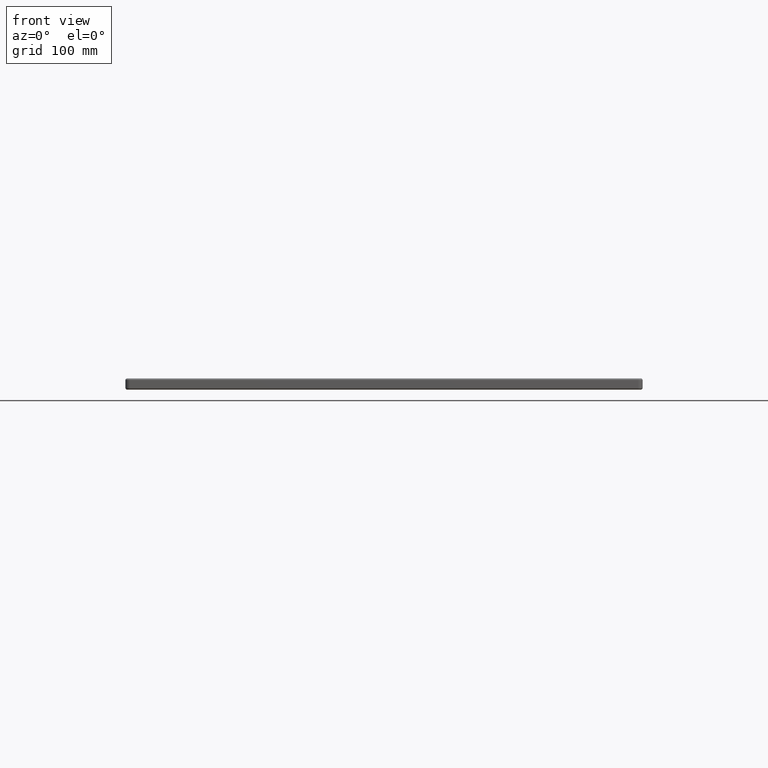
[diagram: clean part render]
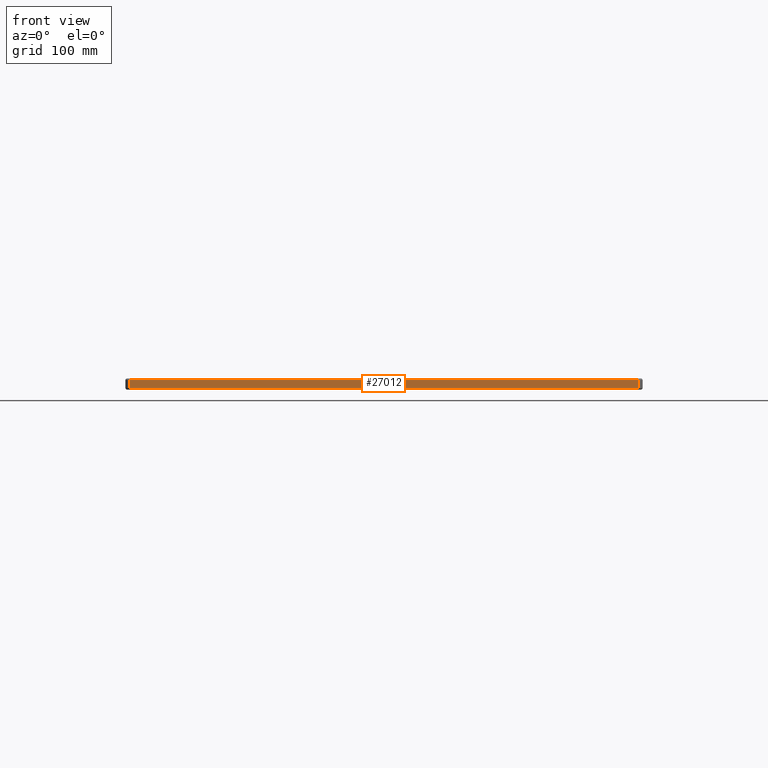
[diagram: same view with one face highlighted and labeled with its STEP entity id]
A machine part, front view. The second image highlights one B-rep face of the part: STEP entity #27012.
In plain terms, the highlighted planar face has unit normal (-0, -1, 0).
Its self-contained STEP definition (entity closure, byte-faithful):
#1149 = VERTEX_POINT ( 'NONE', #38526 ) ;
#2215 = FACE_OUTER_BOUND ( 'NONE', #19122, .T. ) ;
#3274 = VECTOR ( 'NONE', #25928, 1000.000000000000000 ) ;
#3946 = LINE ( 'NONE', #27973, #6429 ) ;
#5249 = ORIENTED_EDGE ( 'NONE', *, *, #23906, .F. ) ;
#5381 = VERTEX_POINT ( 'NONE', #36903 ) ;
#6019 = DIRECTION ( 'NONE',  ( 1.000000000000000000, -9.408669700213185700E-017, 0.0000000000000000000 ) ) ;
#6429 = VECTOR ( 'NONE', #34262, 1000.000000000000000 ) ;
#6843 = LINE ( 'NONE', #22860, #39334 ) ;
#7937 = ORIENTED_EDGE ( 'NONE', *, *, #21853, .T. ) ;
#8358 = VECTOR ( 'NONE', #8831, 1000.000000000000000 ) ;
#8831 = DIRECTION ( 'NONE',  ( 1.000000000000000000, -9.408669700213185700E-017, 0.0000000000000000000 ) ) ;
#9189 = EDGE_CURVE ( 'NONE', #1149, #31726, #34417, .T. ) ;
#13109 = CARTESIAN_POINT ( 'NONE',  ( -295.0000000000001700, -300.0000000000000000, -13.00000000000000000 ) ) ;
#15167 = AXIS2_PLACEMENT_3D ( 'NONE', #18428, #21957, #6019 ) ;
#15862 = ORIENTED_EDGE ( 'NONE', *, *, #39635, .T. ) ;
#16541 = DIRECTION ( 'NONE',  ( 0.0000000000000000000, 0.0000000000000000000, 1.000000000000000000 ) ) ;
#18089 = VERTEX_POINT ( 'NONE', #33758 ) ;
#18428 = CARTESIAN_POINT ( 'NONE',  ( -295.0000000000001700, -300.0000000000000600, -13.00000000000000000 ) ) ;
#19122 = EDGE_LOOP ( 'NONE', ( #5249, #25261, #15862, #7937 ) ) ;
#21853 = EDGE_CURVE ( 'NONE', #5381, #18089, #3946, .T. ) ;
#21957 = DIRECTION ( 'NONE',  ( -9.408669700213185700E-017, -1.000000000000000000, 0.0000000000000000000 ) ) ;
#22860 = CARTESIAN_POINT ( 'NONE',  ( 295.0000000000001700, -300.0000000000001100, -13.00000000000000000 ) ) ;
#23906 = EDGE_CURVE ( 'NONE', #1149, #18089, #30345, .T. ) ;
#25261 = ORIENTED_EDGE ( 'NONE', *, *, #9189, .T. ) ;
#25928 = DIRECTION ( 'NONE',  ( 0.0000000000000000000, 0.0000000000000000000, 1.000000000000000000 ) ) ;
#27012 = ADVANCED_FACE ( 'NONE', ( #2215 ), #34173, .T. ) ;
#27973 = CARTESIAN_POINT ( 'NONE',  ( -295.0000000000001700, -300.0000000000000600, -2.000000000000000000 ) ) ;
#30345 = LINE ( 'NONE', #13109, #3274 ) ;
#31726 = VERTEX_POINT ( 'NONE', #38342 ) ;
#33758 = CARTESIAN_POINT ( 'NONE',  ( -295.0000000000001700, -300.0000000000000000, -2.000000000000001800 ) ) ;
#34173 = PLANE ( 'NONE',  #15167 ) ;
#34262 = DIRECTION ( 'NONE',  ( -1.000000000000000000, 9.408669700213185700E-017, -0.0000000000000000000 ) ) ;
#34417 = LINE ( 'NONE', #40478, #8358 ) ;
#36903 = CARTESIAN_POINT ( 'NONE',  ( 295.0000000000001700, -300.0000000000001100, -2.000000000000003600 ) ) ;
#38342 = CARTESIAN_POINT ( 'NONE',  ( 295.0000000000001700, -300.0000000000001100, -11.00000000000000000 ) ) ;
#38526 = CARTESIAN_POINT ( 'NONE',  ( -295.0000000000001700, -300.0000000000000000, -11.00000000000000000 ) ) ;
#39334 = VECTOR ( 'NONE', #16541, 1000.000000000000000 ) ;
#39635 = EDGE_CURVE ( 'NONE', #31726, #5381, #6843, .T. ) ;
#40478 = CARTESIAN_POINT ( 'NONE',  ( -295.0000000000001700, -300.0000000000000600, -11.00000000000000000 ) ) ;